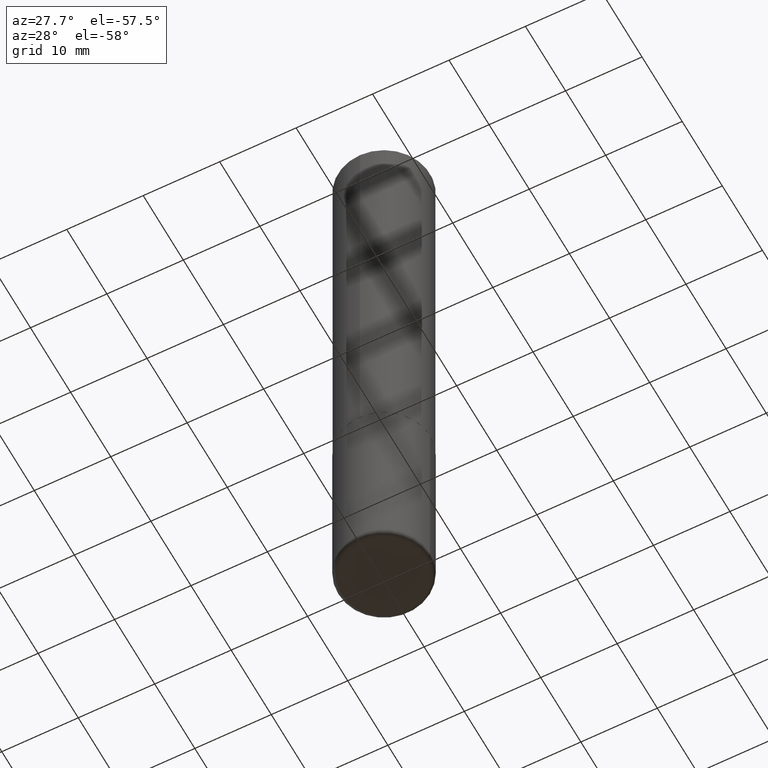
[diagram: clean part render]
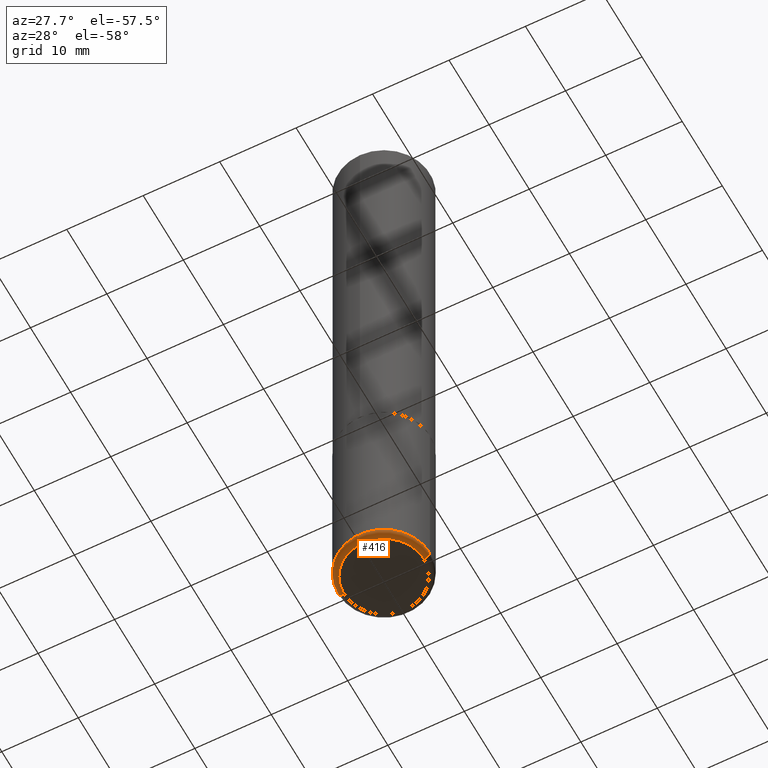
[diagram: same view with one face highlighted and labeled with its STEP entity id]
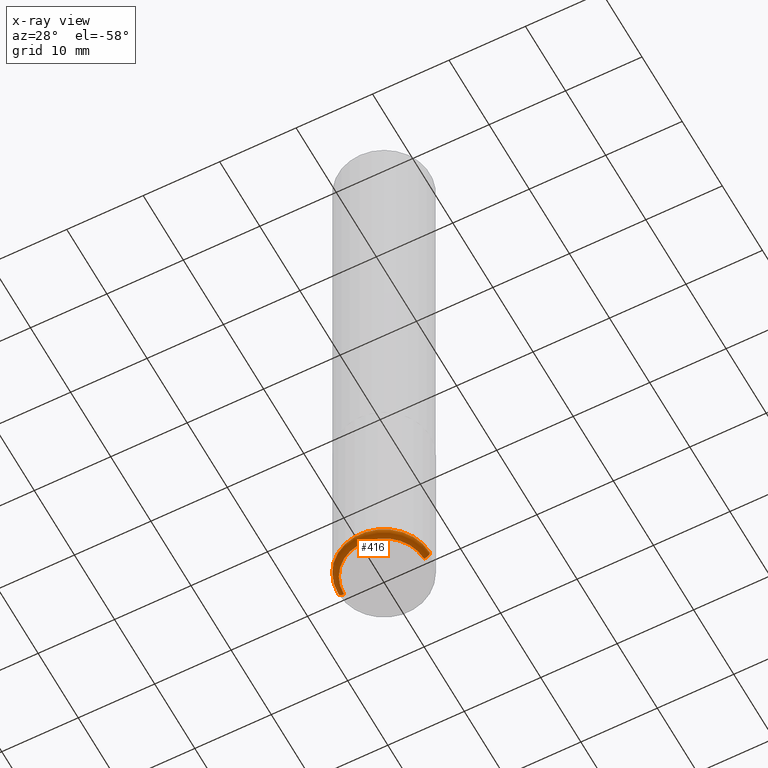
[diagram: x-ray of the same camera — body ghosted, the highlighted face saturated]
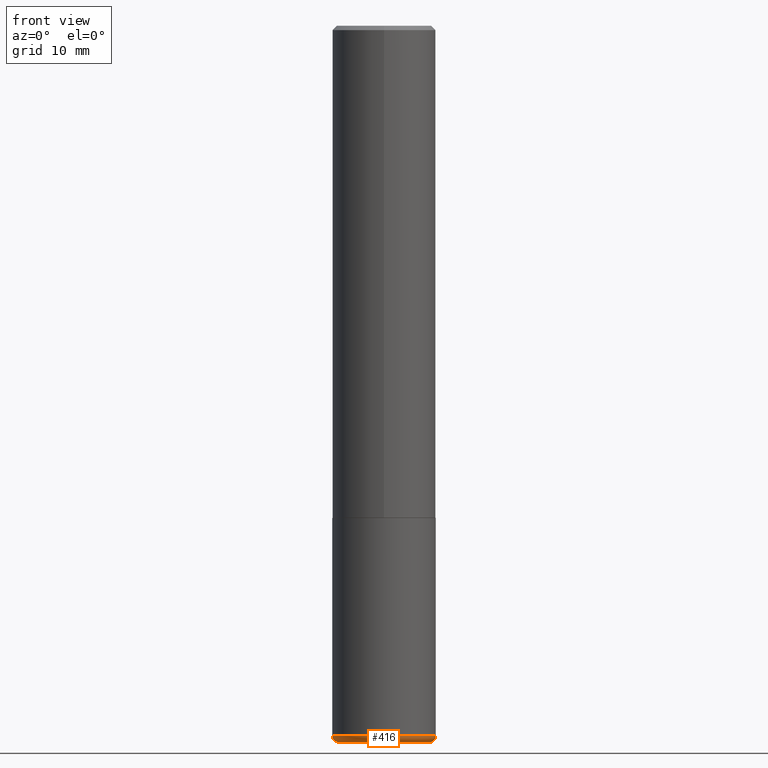
[diagram: same view with one face highlighted and labeled with its STEP entity id]
A machine part, auxiliary view. The second image highlights one B-rep face of the part: STEP entity #416.
The next image is the same camera in x-ray: the body ghosted, the highlighted face saturated — about 0% of this face is hidden behind the body in this view.
A second angle (front view) of the same face is appended — the face is thin or edge-on in the first view.
In plain terms, the highlighted toroidal blend (fillet) surface has major radius 5.2375 mm and minor (blend) radius 0.762 mm.
Its self-contained STEP definition (entity closure, byte-faithful):
#5 = CIRCLE ( 'NONE', #233, 0.2062000000000000222 ) ;
#9 = AXIS2_PLACEMENT_3D ( 'NONE', #154, #123, #413 ) ;
#10 = DIRECTION ( 'NONE',  ( 1.000000000000000000, -6.982962677686265922E-15, 4.883557194083112340E-29 ) ) ;
#14 = AXIS2_PLACEMENT_3D ( 'NONE', #321, #133, #96 ) ;
#15 = DIRECTION ( 'NONE',  ( -2.445468806185136597E-29, 3.491481338843145583E-15, 1.000000000000000000 ) ) ;
#24 = EDGE_CURVE ( 'NONE', #84, #252, #67, .T. ) ;
#33 = EDGE_CURVE ( 'NONE', #127, #252, #178, .T. ) ;
#67 = CIRCLE ( 'NONE', #9, 0.2361999999999999655 ) ;
#84 = VERTEX_POINT ( 'NONE', #347 ) ;
#96 = DIRECTION ( 'NONE',  ( 1.000000000000000000, -6.982962677686279332E-15, 0.000000000000000000 ) ) ;
#123 = DIRECTION ( 'NONE',  ( -2.445468806185136597E-29, 3.491481338843145583E-15, 1.000000000000000000 ) ) ;
#127 = VERTEX_POINT ( 'NONE', #170 ) ;
#133 = DIRECTION ( 'NONE',  ( -6.982962677686266711E-15, -1.000000000000000000, 3.491481338843145583E-15 ) ) ;
#143 = DIRECTION ( 'NONE',  ( -2.445468806185136597E-29, 3.491481338843145583E-15, 1.000000000000000000 ) ) ;
#154 = CARTESIAN_POINT ( 'NONE',  ( 7.917694353785617077E-29, -1.130436913077245307E-14, -3.237700000000000244 ) ) ;
#156 = AXIS2_PLACEMENT_3D ( 'NONE', #176, #143, #10 ) ;
#162 = ORIENTED_EDGE ( 'NONE', *, *, #167, .F. ) ;
#167 = EDGE_CURVE ( 'NONE', #343, #84, #394, .T. ) ;
#170 = CARTESIAN_POINT ( 'NONE',  ( 0.2062000000000000222, -1.284900047507665465E-14, -3.267700000000000049 ) ) ;
#176 = CARTESIAN_POINT ( 'NONE',  ( 7.917694353785617077E-29, -1.130436913077245307E-14, -3.237700000000000244 ) ) ;
#178 = CIRCLE ( 'NONE', #14, 0.02999999999999995379 ) ;
#220 = TOROIDAL_SURFACE ( 'NONE', #156, 0.2062000000000000222, 0.02999999999999995379 ) ;
#233 = AXIS2_PLACEMENT_3D ( 'NONE', #397, #15, #370 ) ;
#242 = CARTESIAN_POINT ( 'NONE',  ( -0.2062000000000000222, -9.785020819353759273E-15, -3.267700000000000049 ) ) ;
#245 = ORIENTED_EDGE ( 'NONE', *, *, #24, .F. ) ;
#252 = VERTEX_POINT ( 'NONE', #388 ) ;
#259 = ORIENTED_EDGE ( 'NONE', *, *, #33, .T. ) ;
#286 = EDGE_LOOP ( 'NONE', ( #162, #371, #259, #245 ) ) ;
#321 = CARTESIAN_POINT ( 'NONE',  ( 0.2062000000000000222, -1.274425603491136128E-14, -3.237700000000000244 ) ) ;
#329 = CARTESIAN_POINT ( 'NONE',  ( -0.2062000000000000222, -9.839230009635125344E-15, -3.237700000000000244 ) ) ;
#343 = VERTEX_POINT ( 'NONE', #242 ) ;
#347 = CARTESIAN_POINT ( 'NONE',  ( -0.2361999999999999655, -9.626067188907095099E-15, -3.237700000000000244 ) ) ;
#362 = DIRECTION ( 'NONE',  ( 7.105427357601001859E-15, 1.000000000000000000, -3.491481338843145583E-15 ) ) ;
#370 = DIRECTION ( 'NONE',  ( 1.000000000000000000, -6.982962677686262766E-15, 0.000000000000000000 ) ) ;
#371 = ORIENTED_EDGE ( 'NONE', *, *, #379, .T. ) ;
#373 = FACE_OUTER_BOUND ( 'NONE', #286, .T. ) ;
#379 = EDGE_CURVE ( 'NONE', #343, #127, #5, .T. ) ;
#388 = CARTESIAN_POINT ( 'NONE',  ( 0.2361999999999999655, -1.295374491524194802E-14, -3.237700000000000244 ) ) ;
#393 = DIRECTION ( 'NONE',  ( -1.000000000000000000, 7.105427357601001859E-15, 0.000000000000000000 ) ) ;
#394 = CIRCLE ( 'NONE', #398, 0.02999999999999995379 ) ;
#397 = CARTESIAN_POINT ( 'NONE',  ( 7.991058417971171713E-29, -1.140911357093774644E-14, -3.267700000000000049 ) ) ;
#398 = AXIS2_PLACEMENT_3D ( 'NONE', #329, #362, #393 ) ;
#413 = DIRECTION ( 'NONE',  ( 1.000000000000000000, -6.982962677686265922E-15, 0.000000000000000000 ) ) ;
#416 = ADVANCED_FACE ( 'NONE', ( #373 ), #220, .T. ) ;